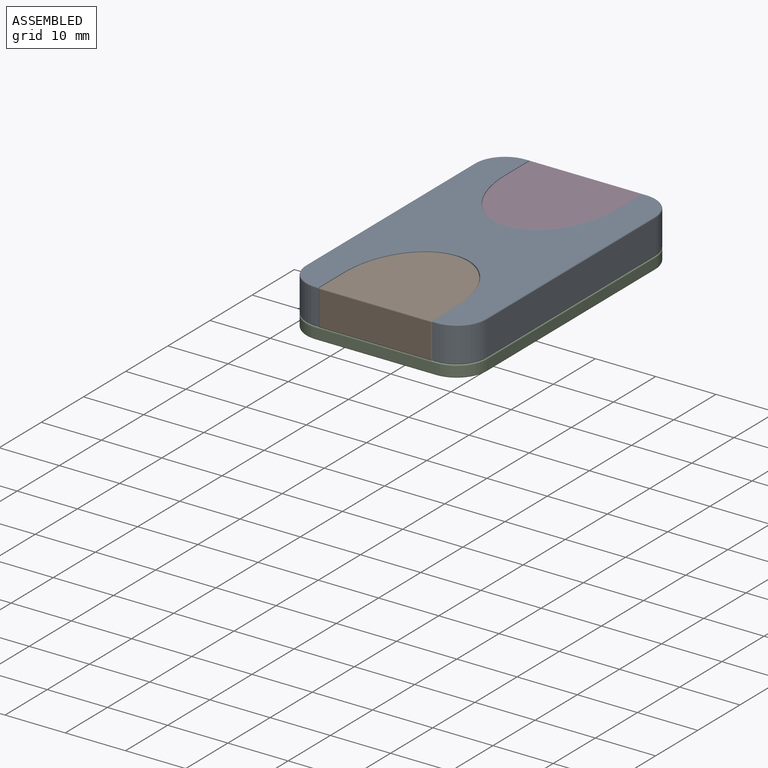
[diagram: assembled view]
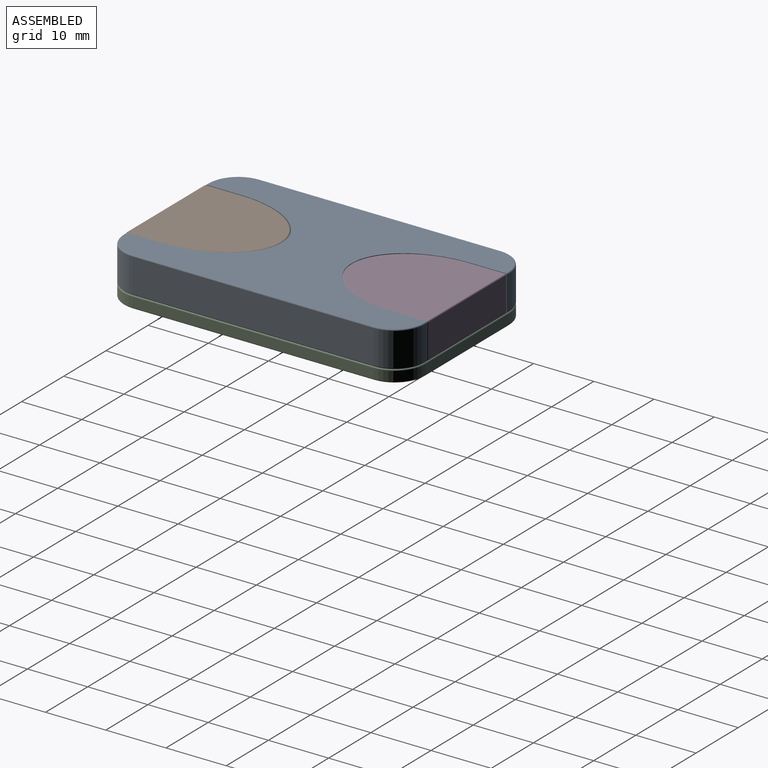
[diagram: assembled view, second angle]
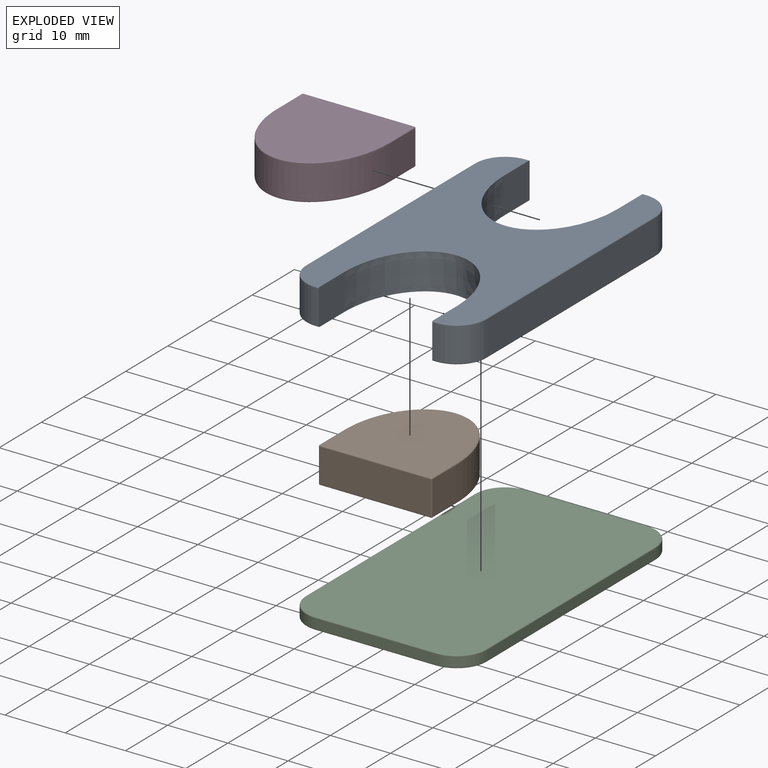
[diagram: exploded view]
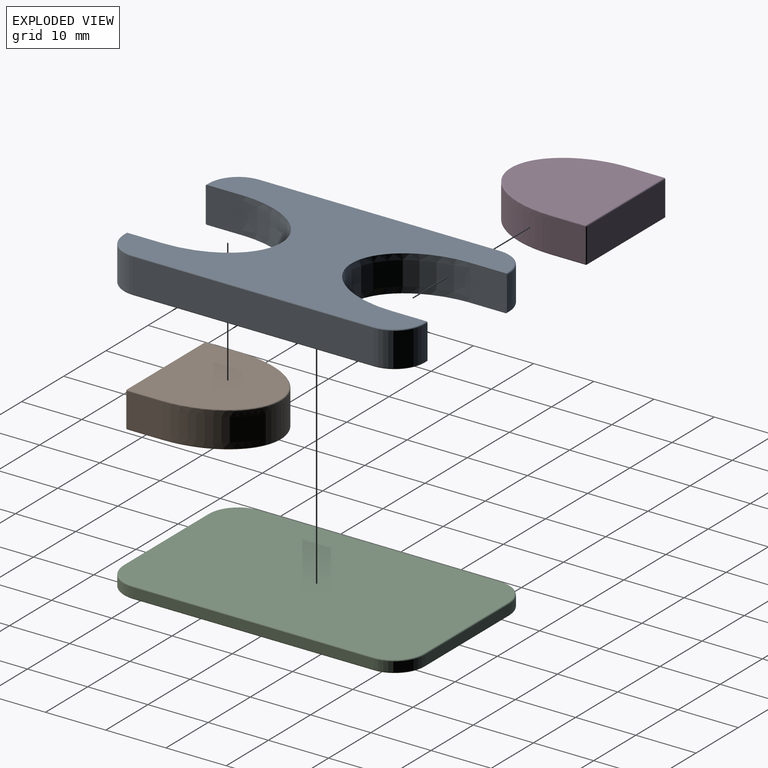
[diagram: exploded view, second angle]
ASSEMBLY  parts=4 mates=2
PART A: 38 faces, bbox 30.8x50.8x6 mm
  f0: plane 5.6x0.59mm, normal (0,1,0), area 3.3mm2, adj f5,f8,f15,f33
  f1: plane 5.6x0.59mm, normal (0,-1,0), area 3.3mm2, adj f16,f19,f27,f37
  f2: plane 49.6x29.6mm, normal (0,0,1), area 840.3mm2, adj f4,f5,f6,f18,f19,f20,f21,f22
  f3: plane 49.6x29.6mm, normal (0,0,-1), area 840.3mm2, adj f7,f8,f9,f25,f26,f27,f28,f29
  f4: cylinder r=0.2mm len=0.59mm, axis (-1,0,0), area 0.2mm2, adj f2,f13,f21,f36
  f5: cylinder r=0.2mm len=0.59mm, axis (1,0,0), area 0.2mm2, adj f0,f2,f22,f33
  f6: cylinder r=0.2mm len=0.59mm, axis (1,0,0), area 0.2mm2, adj f2,f11,f24,f34
  f7: cylinder r=0.2mm len=0.59mm, axis (1,0,0), area 0.2mm2, adj f3,f13,f29,f36
  f8: cylinder r=0.2mm len=0.59mm, axis (-1,0,0), area 0.2mm2, adj f0,f3,f28,f33
  f9: cylinder r=0.2mm len=0.59mm, axis (-1,0,0), area 0.2mm2, adj f3,f11,f31,f34
  f10: plane 40x5.6mm, normal (1,0,0), area 224mm2, adj f14,f17,f23,f30
  f11: plane 5.6x0.59mm, normal (0,1,0), area 3.3mm2, adj f6,f9,f14,f34
  f12: plane 40x5.6mm, normal (-1,0,0), area 224mm2, adj f15,f16,f20,f26
  f13: plane 5.6x0.59mm, normal (0,-1,0), area 3.3mm2, adj f4,f7,f17,f36
  f14: cylinder r=5mm len=5.6mm, axis (0,0,1), area 44mm2, adj f10,f11,f24,f31
  f15: cylinder r=5mm len=5.6mm, axis (0,0,-1), area 44mm2, adj f0,f12,f22,f28
  f16: cylinder r=5mm len=5.6mm, axis (0,0,1), area 44mm2, adj f1,f12,f18,f25
  f17: cylinder r=5mm len=5.6mm, axis (0,0,-1), area 44mm2, adj f10,f13,f21,f29
  f18: torus R=4.8mm, axis (0,0,1), area 2.4mm2, adj f2,f16,f19,f20
  f19: cylinder r=0.2mm len=0.59mm, axis (-1,0,0), area 0.2mm2, adj f1,f2,f18,f37
  f20: cylinder r=0.2mm len=40mm, axis (0,1,0), area 12.6mm2, adj f2,f12,f18,f22
  f21: torus R=4.8mm, axis (0,0,1), area 2.4mm2, adj f2,f4,f17,f23
  f22: torus R=4.8mm, axis (0,0,1), area 2.4mm2, adj f2,f5,f15,f20
  f23: cylinder r=0.2mm len=40mm, axis (0,-1,0), area 12.6mm2, adj f2,f10,f21,f24
  f24: torus R=4.8mm, axis (0,0,1), area 2.4mm2, adj f2,f6,f14,f23
  f25: torus R=4.8mm, axis (0,0,1), area 2.4mm2, adj f3,f16,f26,f27
  f26: cylinder r=0.2mm len=40mm, axis (0,-1,0), area 12.6mm2, adj f3,f12,f25,f28
  f27: cylinder r=0.2mm len=0.59mm, axis (1,0,0), area 0.2mm2, adj f1,f3,f25,f37
  f28: torus R=4.8mm, axis (0,0,1), area 2.4mm2, adj f3,f8,f15,f26
  f29: torus R=4.8mm, axis (0,0,1), area 2.4mm2, adj f3,f7,f17,f30
  f30: cylinder r=0.2mm len=40mm, axis (0,1,0), area 12.6mm2, adj f3,f10,f29,f31
  f31: torus R=4.8mm, axis (0,0,1), area 2.4mm2, adj f3,f9,f14,f30
  f32: extruded ~18.83x16.18mm, area 237.2mm2, adj f2,f3,f33,f34
  f33: plane 6x3.01mm, normal (1,0,0), area 18.1mm2, adj f0,f2,f3,f5,f8,f32
  f34: plane 6.02x6mm, normal (-1,0,0), area 36.1mm2, adj f2,f3,f6,f9,f11,f32
  f35: extruded ~18.83x16.18mm, area 237.2mm2, adj f2,f3,f36,f37
  f36: plane 6.02x6mm, normal (-1,0,0), area 36.1mm2, adj f2,f3,f4,f7,f13,f35
  f37: plane 6x3.01mm, normal (1,0,0), area 18.1mm2, adj f1,f2,f3,f19,f27,f35
PART B: 20 faces, bbox 18.8x29.2x6 mm
  f0: extruded ~18.83x16.18mm, area 221.4mm2, adj f1,f3,f6,f10
  f1: plane 5.82x5.6mm, normal (1,0,0), area 32.6mm2, adj f0,f8,f12,f15
  f2: plane 18.43x5.6mm, normal (0,1,0), area 103.2mm2, adj f9,f13,f15,f18
  f3: plane 5.6x2.81mm, normal (-1,0,0), area 15.7mm2, adj f0,f7,f11,f18
  f4: plane 18.8x18.43mm, normal (0,0,1), area 295.1mm2, adj f10,f11,f12,f13
  f5: plane 18.8x18.43mm, normal (0,0,-1), area 295.1mm2, adj f6,f7,f8,f9
  f6: bspline ~29.15x18.83mm, area 12.1mm2, adj f0,f5,f7,f8
  f7: cylinder r=0.2mm len=2.81mm, axis (0,-1,0), area 0.9mm2, adj f3,f5,f6,f17
  f8: cylinder r=0.2mm len=5.82mm, axis (0,1,0), area 1.8mm2, adj f1,f5,f6,f14
  f9: cylinder r=0.2mm len=18.43mm, axis (-1,0,0), area 5.8mm2, adj f2,f5,f14,f17
  f10: bspline ~29.16x18.83mm, area 12.1mm2, adj f0,f4,f11,f12
  f11: cylinder r=0.2mm len=2.81mm, axis (0,1,0), area 0.9mm2, adj f3,f4,f10,f19
  f12: cylinder r=0.2mm len=5.82mm, axis (0,-1,0), area 1.8mm2, adj f1,f4,f10,f16
  f13: cylinder r=0.2mm len=18.43mm, axis (1,0,0), area 5.8mm2, adj f2,f4,f16,f19
  f14: sphere r=0.2mm, area 0mm2, adj f8,f9,f15
  f15: cylinder r=0.2mm len=5.6mm, axis (0,0,-1), area 1.8mm2, adj f1,f2,f14,f16
  f16: sphere r=0.2mm, area 0mm2, adj f12,f13,f15
  f17: sphere r=0.2mm, area 0.1mm2, adj f7,f9,f18
  f18: cylinder r=0.2mm len=5.6mm, axis (0,0,-1), area 1.8mm2, adj f2,f3,f17,f19
  f19: sphere r=0.2mm, area 0.1mm2, adj f11,f13,f18
PART C: 26 faces, bbox 30.8x50.8x2 mm
  f0: plane 40x1.6mm, normal (1,0,0), area 64mm2, adj f6,f9,f15,f24
  f1: plane 20x1.6mm, normal (0,1,0), area 32mm2, adj f6,f7,f16,f23
  f2: plane 40x1.6mm, normal (-1,0,0), area 64mm2, adj f7,f8,f12,f19
  f3: plane 20x1.6mm, normal (0,-1,0), area 32mm2, adj f8,f9,f11,f20
  f4: plane 49.6x29.6mm, normal (0,0,1), area 1448.4mm2, adj f10,f11,f12,f13,f14,f15,f16,f17
  f5: plane 49.6x29.6mm, normal (0,0,-1), area 1448.4mm2, adj f18,f19,f20,f21,f22,f23,f24,f25
  f6: cylinder r=5mm len=5mm, axis (0,0,1), area 12.6mm2, adj f0,f1,f17,f25
  f7: cylinder r=5mm len=5mm, axis (0,0,-1), area 12.6mm2, adj f1,f2,f14,f21
  f8: cylinder r=5mm len=5mm, axis (0,0,1), area 12.6mm2, adj f2,f3,f10,f18
  f9: cylinder r=5mm len=5mm, axis (0,0,-1), area 12.6mm2, adj f0,f3,f13,f22
  f10: torus R=4.8mm, axis (0,0,1), area 2.4mm2, adj f4,f8,f11,f12
  f11: cylinder r=0.2mm len=20mm, axis (-1,0,0), area 6.3mm2, adj f3,f4,f10,f13
  f12: cylinder r=0.2mm len=40mm, axis (0,1,0), area 12.6mm2, adj f2,f4,f10,f14
  f13: torus R=4.8mm, axis (0,0,1), area 2.4mm2, adj f4,f9,f11,f15
  f14: torus R=4.8mm, axis (0,0,1), area 2.4mm2, adj f4,f7,f12,f16
  f15: cylinder r=0.2mm len=40mm, axis (0,-1,0), area 12.6mm2, adj f0,f4,f13,f17
  f16: cylinder r=0.2mm len=20mm, axis (1,0,0), area 6.3mm2, adj f1,f4,f14,f17
  f17: torus R=4.8mm, axis (0,0,1), area 2.4mm2, adj f4,f6,f15,f16
  f18: torus R=4.8mm, axis (0,0,1), area 2.4mm2, adj f5,f8,f19,f20
  f19: cylinder r=0.2mm len=40mm, axis (0,-1,0), area 12.6mm2, adj f2,f5,f18,f21
  f20: cylinder r=0.2mm len=20mm, axis (1,0,0), area 6.3mm2, adj f3,f5,f18,f22
  f21: torus R=4.8mm, axis (0,0,1), area 2.4mm2, adj f5,f7,f19,f23
  f22: torus R=4.8mm, axis (0,0,1), area 2.4mm2, adj f5,f9,f20,f24
  f23: cylinder r=0.2mm len=20mm, axis (-1,0,0), area 6.3mm2, adj f1,f5,f21,f25
  f24: cylinder r=0.2mm len=40mm, axis (0,1,0), area 12.6mm2, adj f0,f5,f22,f25
  f25: torus R=4.8mm, axis (0,0,1), area 2.4mm2, adj f5,f6,f23,f24
PART D: same geometry as B
PLACE A at identity
PLACE B rot(axis=(1,0,0),180deg) t=(0,-15.5,6)mm
PLACE C t=(0,0,-2)mm
PLACE D t=(0,15.4,0)mm
MATE slider C.f4 <-> A.f3  axis (0,0,1) through (0,0,0)mm
MATE slider B.f3 <-> A.f37  axis (-1,0,0) through (-9.41,-23.49,3)mm
